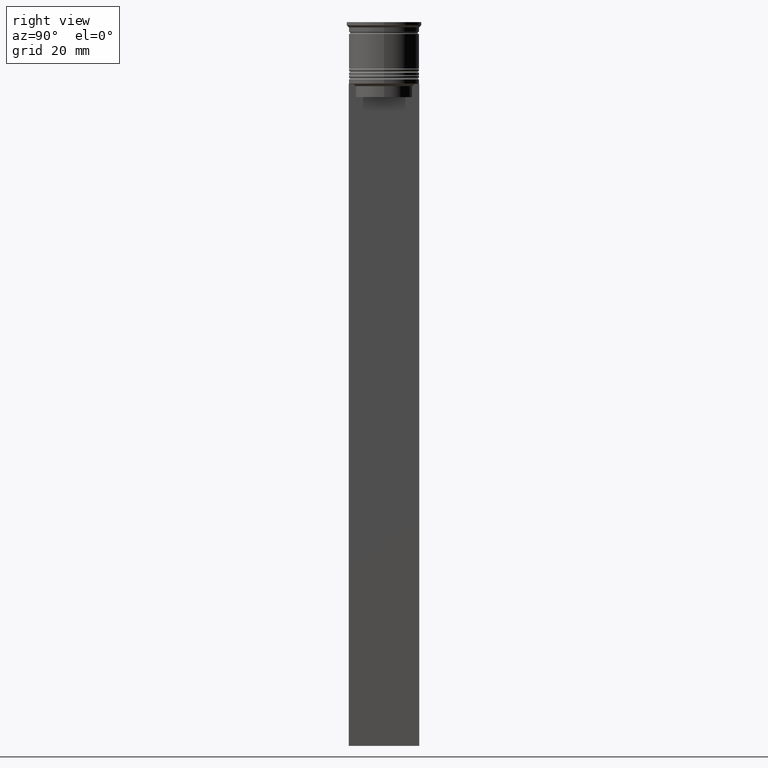
[diagram: clean part render]
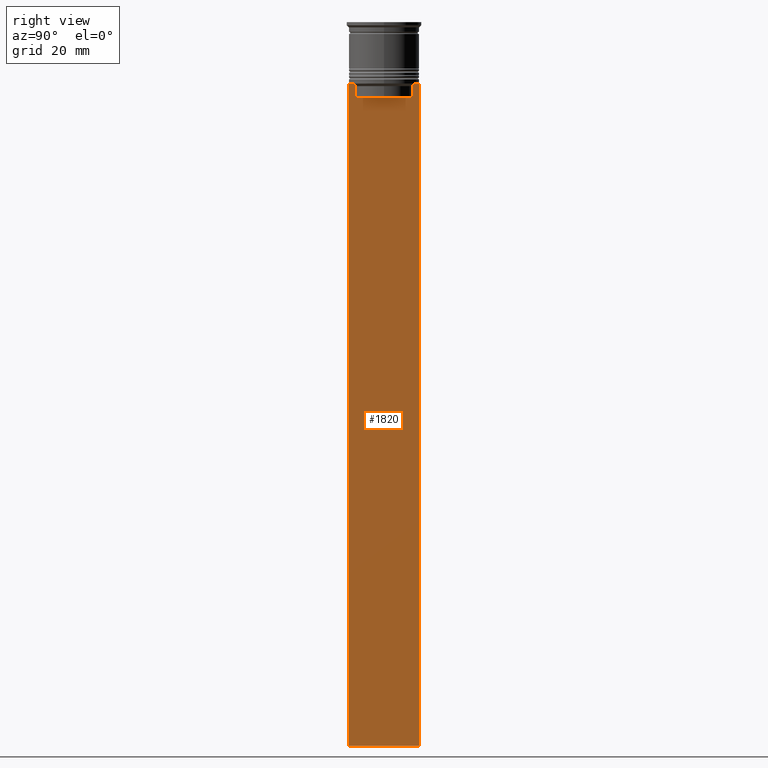
[diagram: same view with one face highlighted and labeled with its STEP entity id]
A machine part, right view. The second image highlights one B-rep face of the part: STEP entity #1820.
In plain terms, the highlighted planar face has unit normal (-1, 0, 0).
Its self-contained STEP definition (entity closure, byte-faithful):
#22 = CARTESIAN_POINT ( 'NONE',  ( 0.5000000000000001110, 6.380438856379708312, -17.00000000000000000 ) ) ;
#25 = VECTOR ( 'NONE', #631, 1000.000000000000000 ) ;
#58 = EDGE_CURVE ( 'NONE', #1824, #1786, #1383, .T. ) ;
#75 = EDGE_CURVE ( 'NONE', #306, #1634, #2202, .T. ) ;
#135 = CARTESIAN_POINT ( 'NONE',  ( 0.5000000000000001110, -8.000000000000003553, -163.9999999999999716 ) ) ;
#188 = VECTOR ( 'NONE', #1923, 1000.000000000000000 ) ;
#211 = CARTESIAN_POINT ( 'NONE',  ( 0.5000000000000001110, -8.000000000000003553, -14.00000000000000178 ) ) ;
#221 = LINE ( 'NONE', #1357, #188 ) ;
#248 = CARTESIAN_POINT ( 'NONE',  ( 0.5000000000000001110, 6.380438856379708312, 0.000000000000000000 ) ) ;
#266 = DIRECTION ( 'NONE',  ( -0.000000000000000000, -0.000000000000000000, 1.000000000000000000 ) ) ;
#306 = VERTEX_POINT ( 'NONE', #1174 ) ;
#313 = VERTEX_POINT ( 'NONE', #22 ) ;
#326 = EDGE_CURVE ( 'NONE', #1426, #2394, #1701, .T. ) ;
#335 = CARTESIAN_POINT ( 'NONE',  ( 0.5000000000000001110, -6.881860213634098500, -14.00000000000000178 ) ) ;
#362 = CARTESIAN_POINT ( 'NONE',  ( 0.5000000000000001110, 6.380438856379708312, -14.50000000000000000 ) ) ;
#372 = ORIENTED_EDGE ( 'NONE', *, *, #1477, .T. ) ;
#373 = EDGE_CURVE ( 'NONE', #2394, #313, #2151, .T. ) ;
#418 = CARTESIAN_POINT ( 'NONE',  ( 0.5000000000000001110, -8.000000000000003553, -14.00000000000000178 ) ) ;
#453 = CARTESIAN_POINT ( 'NONE',  ( 0.5000000000000001110, -8.000000000000003553, -163.9999999999999716 ) ) ;
#487 = LINE ( 'NONE', #1687, #920 ) ;
#499 = PLANE ( 'NONE',  #1660 ) ;
#541 = CARTESIAN_POINT ( 'NONE',  ( 0.5000000000000001110, 6.881860213634098500, -14.00000000000000178 ) ) ;
#549 = VECTOR ( 'NONE', #2160, 1000.000000000000000 ) ;
#555 = DIRECTION ( 'NONE',  ( 0.000000000000000000, -1.000000000000000000, 0.000000000000000000 ) ) ;
#570 = EDGE_LOOP ( 'NONE', ( #2208, #2190, #1076, #372, #2056, #2456, #1231, #702, #2293, #673, #1269, #2058 ) ) ;
#575 = EDGE_CURVE ( 'NONE', #1123, #937, #487, .T. ) ;
#631 = DIRECTION ( 'NONE',  ( 0.000000000000000000, -1.000000000000000000, 0.000000000000000000 ) ) ;
#671 = CARTESIAN_POINT ( 'NONE',  ( 0.5000000000000001110, -6.380438856379708312, -14.50000000000000000 ) ) ;
#673 = ORIENTED_EDGE ( 'NONE', *, *, #58, .T. ) ;
#702 = ORIENTED_EDGE ( 'NONE', *, *, #75, .T. ) ;
#703 = EDGE_CURVE ( 'NONE', #1634, #1824, #1344, .T. ) ;
#766 = CARTESIAN_POINT ( 'NONE',  ( 0.5000000000000001110, 6.547597841304911626, -14.33335192459222718 ) ) ;
#850 = VECTOR ( 'NONE', #266, 1000.000000000000000 ) ;
#894 = LINE ( 'NONE', #2084, #1408 ) ;
#920 = VECTOR ( 'NONE', #1276, 1000.000000000000000 ) ;
#937 = VERTEX_POINT ( 'NONE', #1281 ) ;
#954 = VECTOR ( 'NONE', #1930, 1000.000000000000000 ) ;
#974 = CARTESIAN_POINT ( 'NONE',  ( 0.5000000000000001110, 7.999999999999996447, -14.00000000000000178 ) ) ;
#1076 = ORIENTED_EDGE ( 'NONE', *, *, #373, .T. ) ;
#1123 = VERTEX_POINT ( 'NONE', #974 ) ;
#1174 = CARTESIAN_POINT ( 'NONE',  ( 0.5000000000000001110, -7.884161337770806632, -14.00000000000000178 ) ) ;
#1231 = ORIENTED_EDGE ( 'NONE', *, *, #1602, .T. ) ;
#1269 = ORIENTED_EDGE ( 'NONE', *, *, #1517, .F. ) ;
#1276 = DIRECTION ( 'NONE',  ( 0.000000000000000000, -1.000000000000000000, 0.000000000000000000 ) ) ;
#1277 = DIRECTION ( 'NONE',  ( 0.000000000000000000, 0.000000000000000000, 1.000000000000000000 ) ) ;
#1281 = CARTESIAN_POINT ( 'NONE',  ( 0.5000000000000001110, 7.884161337770806632, -14.00000000000000178 ) ) ;
#1333 = LINE ( 'NONE', #1731, #2093 ) ;
#1344 = LINE ( 'NONE', #2457, #954 ) ;
#1357 = CARTESIAN_POINT ( 'NONE',  ( 0.5000000000000001110, -8.000000000000003553, -14.00000000000000178 ) ) ;
#1382 = CARTESIAN_POINT ( 'NONE',  ( 0.5000000000000001110, -6.380438856379708312, -17.00000000000000000 ) ) ;
#1383 = LINE ( 'NONE', #453, #1810 ) ;
#1408 = VECTOR ( 'NONE', #2460, 1000.000000000000000 ) ;
#1426 = VERTEX_POINT ( 'NONE', #541 ) ;
#1477 = EDGE_CURVE ( 'NONE', #313, #1561, #894, .T. ) ;
#1517 = EDGE_CURVE ( 'NONE', #1123, #1786, #1333, .T. ) ;
#1551 = LINE ( 'NONE', #418, #1785 ) ;
#1556 = EDGE_CURVE ( 'NONE', #937, #1426, #1551, .T. ) ;
#1561 = VERTEX_POINT ( 'NONE', #1382 ) ;
#1602 = EDGE_CURVE ( 'NONE', #2137, #306, #221, .T. ) ;
#1634 = VERTEX_POINT ( 'NONE', #2015 ) ;
#1635 = LINE ( 'NONE', #2149, #850 ) ;
#1660 = AXIS2_PLACEMENT_3D ( 'NONE', #1872, #2408, #1277 ) ;
#1662 = CARTESIAN_POINT ( 'NONE',  ( 0.5000000000000001110, -6.380438856379708312, -14.50000000000000000 ) ) ;
#1687 = CARTESIAN_POINT ( 'NONE',  ( 0.5000000000000001110, -8.000000000000003553, -14.00000000000000178 ) ) ;
#1688 = FACE_OUTER_BOUND ( 'NONE', #570, .T. ) ;
#1701 = B_SPLINE_CURVE_WITH_KNOTS ( 'NONE', 3,
 ( #2482, #1900, #766, #1719 ),
 .UNSPECIFIED., .F., .F.,
 ( 4, 4 ),
 ( 0.01172465562756038263, 0.01243276816391822651 ),
 .UNSPECIFIED. ) ;
#1719 = CARTESIAN_POINT ( 'NONE',  ( 0.5000000000000001110, 6.380438856379708312, -14.50000000000000000 ) ) ;
#1731 = CARTESIAN_POINT ( 'NONE',  ( 0.5000000000000001110, 7.999999999999996447, 2.031219541881394530 ) ) ;
#1785 = VECTOR ( 'NONE', #555, 1000.000000000000000 ) ;
#1786 = VERTEX_POINT ( 'NONE', #1844 ) ;
#1810 = VECTOR ( 'NONE', #1991, 1000.000000000000000 ) ;
#1820 = ADVANCED_FACE ( 'NONE', ( #1688 ), #499, .F. ) ;
#1824 = VERTEX_POINT ( 'NONE', #135 ) ;
#1844 = CARTESIAN_POINT ( 'NONE',  ( 0.5000000000000001110, 7.999999999999996447, -163.9999999999999716 ) ) ;
#1854 = CARTESIAN_POINT ( 'NONE',  ( 0.5000000000000001110, -6.547597841511247019, -14.33335192438652150 ) ) ;
#1872 = CARTESIAN_POINT ( 'NONE',  ( 0.5000000000000001110, -8.000000000000003553, 2.031219541881394530 ) ) ;
#1900 = CARTESIAN_POINT ( 'NONE',  ( 0.5000000000000001110, 6.714736947114692711, -14.16668390704818847 ) ) ;
#1923 = DIRECTION ( 'NONE',  ( 0.000000000000000000, -1.000000000000000000, 0.000000000000000000 ) ) ;
#1930 = DIRECTION ( 'NONE',  ( 0.000000000000000000, 0.000000000000000000, -1.000000000000000000 ) ) ;
#1991 = DIRECTION ( 'NONE',  ( 0.000000000000000000, 1.000000000000000000, 0.000000000000000000 ) ) ;
#2015 = CARTESIAN_POINT ( 'NONE',  ( 0.5000000000000001110, -8.000000000000003553, -14.00000000000000178 ) ) ;
#2056 = ORIENTED_EDGE ( 'NONE', *, *, #2154, .T. ) ;
#2058 = ORIENTED_EDGE ( 'NONE', *, *, #575, .T. ) ;
#2084 = CARTESIAN_POINT ( 'NONE',  ( 0.5000000000000001110, 6.399999999999999467, -17.00000000000000000 ) ) ;
#2093 = VECTOR ( 'NONE', #2116, 1000.000000000000000 ) ;
#2116 = DIRECTION ( 'NONE',  ( 0.000000000000000000, 0.000000000000000000, -1.000000000000000000 ) ) ;
#2132 = B_SPLINE_CURVE_WITH_KNOTS ( 'NONE', 3,
 ( #1662, #1854, #2441, #335 ),
 .UNSPECIFIED., .F., .F.,
 ( 4, 4 ),
 ( 0.02996184199614751464, 0.03067452609193705923 ),
 .UNSPECIFIED. ) ;
#2137 = VERTEX_POINT ( 'NONE', #2380 ) ;
#2149 = CARTESIAN_POINT ( 'NONE',  ( 0.5000000000000001110, -6.380438856379708312, 0.000000000000000000 ) ) ;
#2151 = LINE ( 'NONE', #248, #549 ) ;
#2154 = EDGE_CURVE ( 'NONE', #1561, #2236, #1635, .T. ) ;
#2160 = DIRECTION ( 'NONE',  ( 0.000000000000000000, 0.000000000000000000, -1.000000000000000000 ) ) ;
#2190 = ORIENTED_EDGE ( 'NONE', *, *, #326, .T. ) ;
#2202 = LINE ( 'NONE', #211, #25 ) ;
#2208 = ORIENTED_EDGE ( 'NONE', *, *, #1556, .T. ) ;
#2236 = VERTEX_POINT ( 'NONE', #671 ) ;
#2256 = EDGE_CURVE ( 'NONE', #2236, #2137, #2132, .T. ) ;
#2293 = ORIENTED_EDGE ( 'NONE', *, *, #703, .T. ) ;
#2380 = CARTESIAN_POINT ( 'NONE',  ( 0.5000000000000001110, -6.881860213634098500, -14.00000000000000178 ) ) ;
#2394 = VERTEX_POINT ( 'NONE', #362 ) ;
#2408 = DIRECTION ( 'NONE',  ( -1.000000000000000000, 0.000000000000000000, 0.000000000000000000 ) ) ;
#2441 = CARTESIAN_POINT ( 'NONE',  ( 0.5000000000000001110, -6.714736947305993908, -14.16668390685738821 ) ) ;
#2456 = ORIENTED_EDGE ( 'NONE', *, *, #2256, .T. ) ;
#2457 = CARTESIAN_POINT ( 'NONE',  ( 0.5000000000000001110, -8.000000000000003553, 2.031219541881394530 ) ) ;
#2460 = DIRECTION ( 'NONE',  ( 0.000000000000000000, -1.000000000000000000, 0.000000000000000000 ) ) ;
#2482 = CARTESIAN_POINT ( 'NONE',  ( 0.5000000000000001110, 6.881860213634098500, -14.00000000000000178 ) ) ;